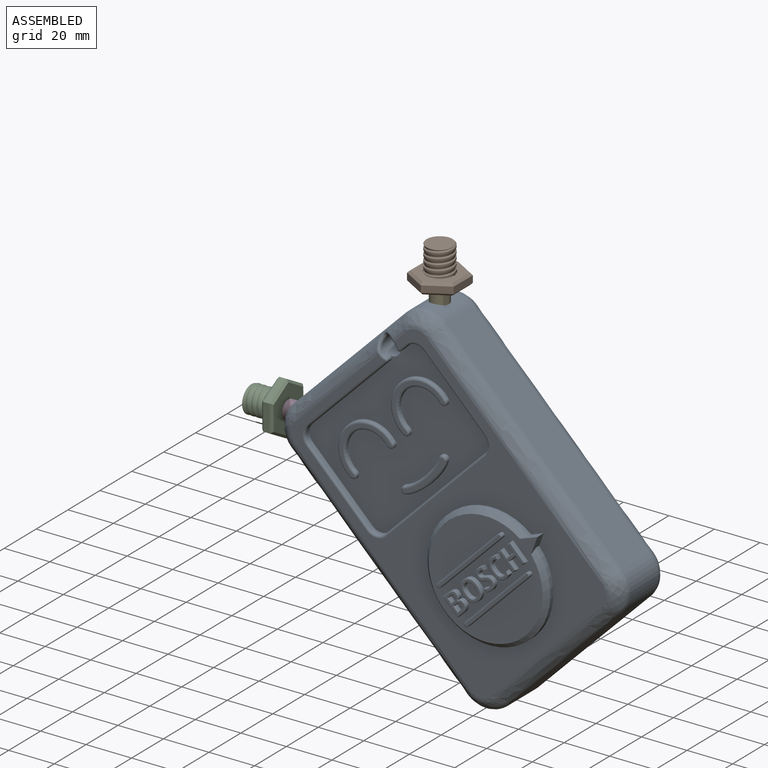
[diagram: assembled view]
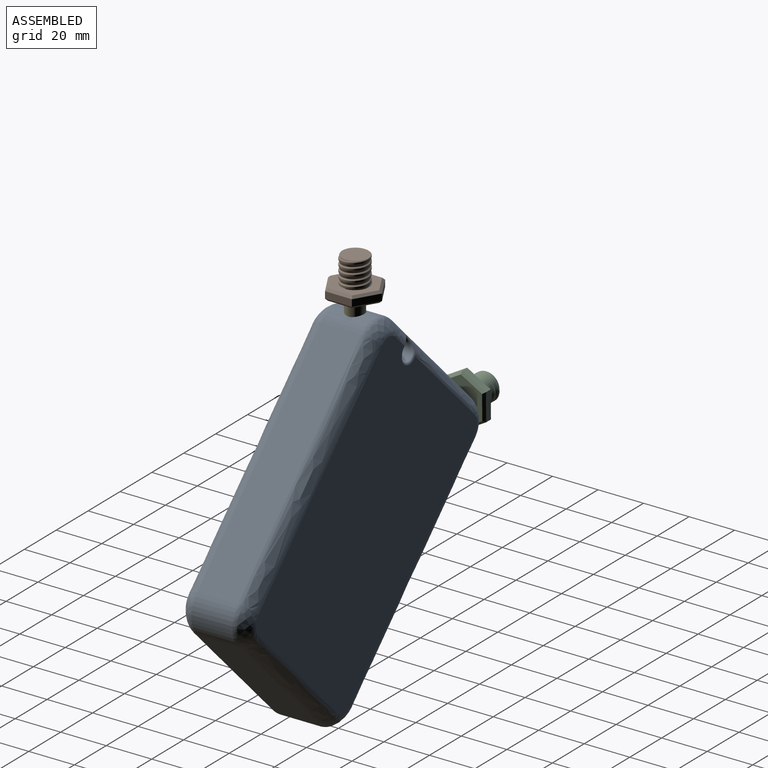
[diagram: assembled view, second angle]
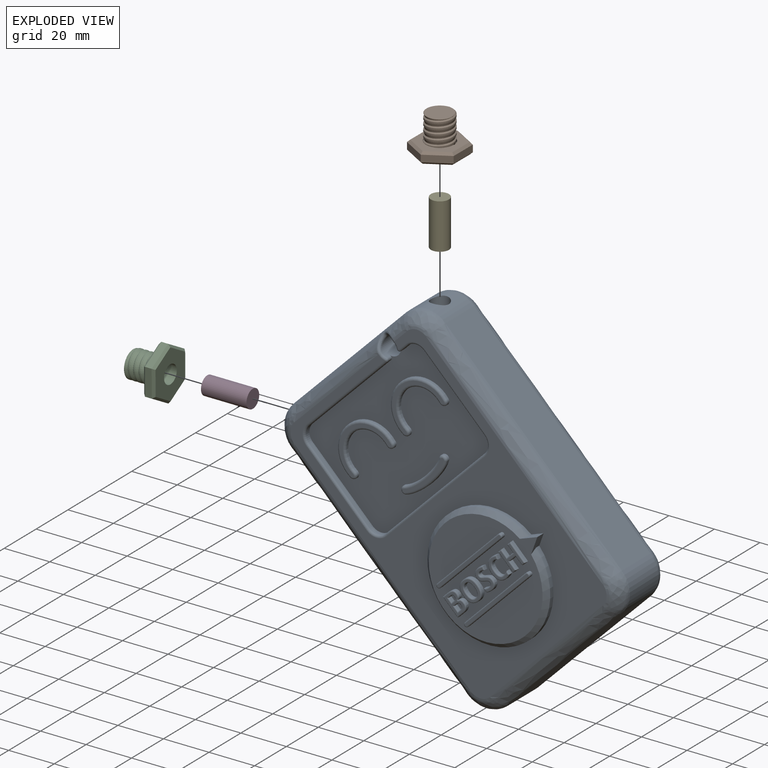
[diagram: exploded view]
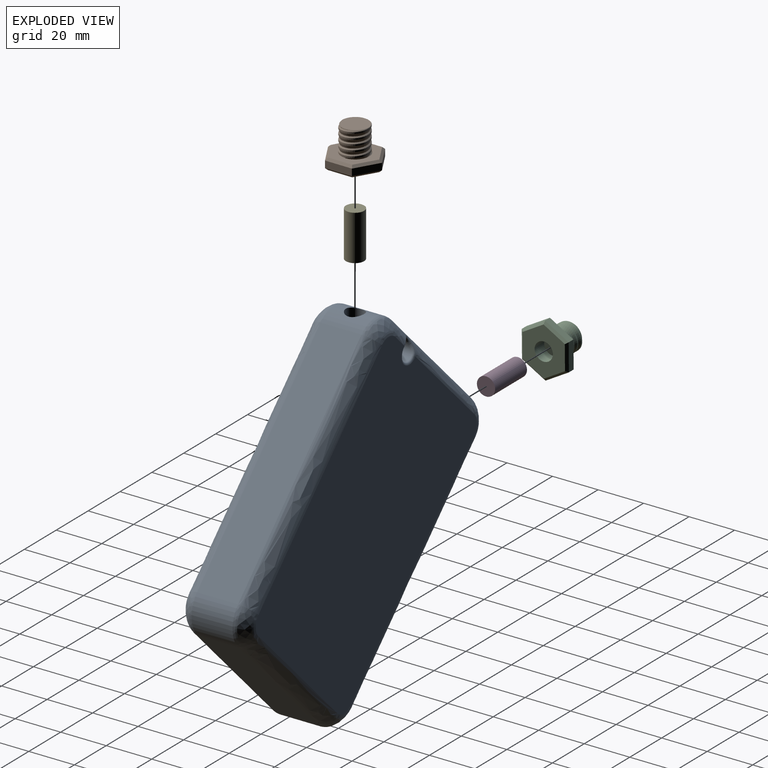
[diagram: exploded view, second angle]
ASSEMBLY  parts=5 mates=4
PART A: 305 faces, bbox 94.1x133.7x36.1 mm
  f0: plane 48.62x2mm, normal (0,-1,0), area 97.2mm2, adj f35,f37,f43,f298
  f1: cylinder r=1mm len=4.23mm, axis (1,0,0), area 6.6mm2, adj f3,f34,f41,f303
  f2: plane 57.11x50mm, normal (0,0,1), area 1597.9mm2, adj f78,f79,f80,f92,f93,f94,f95,f96
  f3: plane 121.61x82.01mm, normal (0,0,1), area 3969.4mm2, adj f1,f13,f14,f15,f16,f17,f18,f19
  f4: plane 70x18mm, normal (0,1,0), area 1260mm2, adj f5,f11,f20,f28
  f5: cylinder r=12mm len=18mm, axis (0,0,-1), area 288.2mm2, adj f4,f6,f18,f26,f73
  f6: plane 109.6x18mm, normal (-1,0,0), area 1972.8mm2, adj f5,f7,f16,f24
  f7: cylinder r=12mm len=18mm, axis (0,0,-1), area 339.3mm2, adj f6,f8,f14,f22
  f8: plane 70x18mm, normal (0,-1,0), area 1260mm2, adj f7,f9,f13,f21
  f9: cylinder r=12mm len=18mm, axis (0,0,-1), area 339.3mm2, adj f8,f10,f15,f23
  f10: plane 109.6x18mm, normal (1,0,0), area 1972.8mm2, adj f9,f11,f17,f25
  f11: cylinder r=12mm len=18mm, axis (0,0,-1), area 288.2mm2, adj f4,f10,f19,f27,f76
  f12: plane 121.61x82.01mm, normal (0,0,-1), area 9896.2mm2, adj f21,f22,f23,f24,f25,f26,f27,f28
  f13: bspline ~70x6mm, area 633.7mm2, adj f3,f8,f14,f15
  f14: bspline ~12x12mm, area 136.9mm2, adj f3,f7,f13,f16
  f15: bspline ~12x12mm, area 136.9mm2, adj f3,f9,f13,f17
  f16: bspline ~109.6x6mm, area 992.3mm2, adj f3,f6,f14,f18
  f17: bspline ~109.6x6mm, area 992.3mm2, adj f3,f10,f15,f19
  f18: bspline ~12x12mm, area 136.9mm2, adj f3,f5,f16,f20
  f19: bspline ~12x12mm, area 136.9mm2, adj f3,f11,f17,f20
  f20: bspline ~70x6mm, area 582.4mm2, adj f3,f4,f18,f19,f301
  f21: bspline ~70x6mm, area 633.7mm2, adj f8,f12,f22,f23
  f22: bspline ~12x12mm, area 136.9mm2, adj f7,f12,f21,f24
  f23: bspline ~12x12mm, area 136.9mm2, adj f9,f12,f21,f25
  f24: bspline ~109.6x6mm, area 992.3mm2, adj f6,f12,f22,f26
  f25: bspline ~109.6x6mm, area 992.3mm2, adj f10,f12,f23,f27
  f26: bspline ~12x12mm, area 136.9mm2, adj f5,f12,f24,f28
  f27: bspline ~12x12mm, area 136.9mm2, adj f11,f12,f25,f28
  f28: bspline ~70x6mm, area 582.4mm2, adj f4,f12,f26,f27,f296
  f29: cylinder r=5.25mm len=5.25mm, axis (0,0,1), area 16.5mm2, adj f30,f36,f37,f42
  f30: plane 61.23x2mm, normal (0,1,0), area 122.5mm2, adj f29,f31,f37,f40
  f31: cylinder r=5.25mm len=5.25mm, axis (0,0,1), area 16.5mm2, adj f30,f32,f37,f38
  f32: plane 37.29x2mm, normal (-1,0,0), area 74.6mm2, adj f31,f33,f37,f39
  f33: cylinder r=5.25mm len=5.25mm, axis (0,0,1), area 16.5mm2, adj f32,f34,f37,f41
  f34: plane 4.23x2mm, normal (0,-1,0), area 8.5mm2, adj f1,f33,f37,f304
  f35: cylinder r=5.25mm len=5.25mm, axis (0,0,1), area 16.5mm2, adj f0,f36,f37,f45
  f36: plane 37.29x2mm, normal (1,0,0), area 74.6mm2, adj f29,f35,f37,f44
  f37: plane 71.73x49.33mm, normal (0,0,1), area 3009.6mm2, adj f0,f29,f30,f31,f32,f33,f34,f35
  f38: torus R=6.25mm, axis (0,0,1), area 13.9mm2, adj f3,f31,f39,f40
  f39: cylinder r=1mm len=37.29mm, axis (0,-1,0), area 58.6mm2, adj f3,f32,f38,f41
  f40: cylinder r=1mm len=61.23mm, axis (-1,0,0), area 96.2mm2, adj f3,f30,f38,f42
  f41: torus R=6.25mm, axis (0,0,1), area 13.9mm2, adj f1,f3,f33,f39
  f42: torus R=6.25mm, axis (0,0,1), area 13.9mm2, adj f3,f29,f40,f44
  f43: cylinder r=1mm len=48.62mm, axis (1,0,0), area 76.4mm2, adj f0,f3,f45,f299
  f44: cylinder r=1mm len=37.29mm, axis (0,1,0), area 58.6mm2, adj f3,f36,f42,f45
  f45: torus R=6.25mm, axis (0,0,1), area 13.9mm2, adj f3,f35,f43,f44
  f46: cylinder r=13.5mm len=27mm, axis (0,0,-1), area 46.5mm2, adj f37,f47,f49,f70
  f47: cylinder r=1.75mm len=3.48mm, axis (0,0,-1), area 5.5mm2, adj f37,f46,f48,f72
  f48: cylinder r=10mm len=20mm, axis (0,0,-1), area 34.4mm2, adj f37,f47,f49,f71
  f49: cylinder r=1.75mm len=3.48mm, axis (0,0,-1), area 5.5mm2, adj f37,f46,f48,f69
  f50: plane 25x15.02mm, normal (0,0,1), area 62.5mm2, adj f69,f70,f71,f72
  f51: cylinder r=1.75mm len=3.48mm, axis (0,0,-1), area 5.5mm2, adj f37,f52,f54,f65
  f52: cylinder r=10mm len=20mm, axis (0,0,-1), area 34.4mm2, adj f37,f51,f53,f66
  f53: cylinder r=1.75mm len=3.48mm, axis (0,0,-1), area 5.5mm2, adj f37,f52,f54,f68
  f54: cylinder r=13.5mm len=27mm, axis (0,0,-1), area 46.5mm2, adj f37,f51,f53,f67
  f55: plane 25x15.02mm, normal (0,0,1), area 62.5mm2, adj f65,f66,f67,f68
  f56: extruded ~21.72x2.02mm, area 22.3mm2, adj f37,f57,f59,f62
  f57: cylinder r=1.76mm len=3.11mm, axis (0,0,-1), area 5.2mm2, adj f37,f56,f58,f64
  f58: extruded ~25.72x2.63mm, area 26.5mm2, adj f37,f57,f59,f63
  f59: cylinder r=1.76mm len=3.11mm, axis (0,0,-1), area 5.2mm2, adj f37,f56,f58,f61
  f60: plane 24.97x3.75mm, normal (0,0,1), area 37.9mm2, adj f61,f62,f63,f64
  f61: torus R=0.76mm, axis (0,0,1), area 6.4mm2, adj f59,f60,f62,f63
  f62: bspline ~23.76x3.31mm, area 35.6mm2, adj f56,f60,f61,f64
  f63: bspline ~26.18x3.64mm, area 40.9mm2, adj f58,f60,f61,f64
  f64: torus R=0.76mm, axis (0,0,1), area 6.4mm2, adj f57,f60,f62,f63
  f65: torus R=0.75mm, axis (0,0,1), area 6.8mm2, adj f51,f55,f66,f67
  f66: torus R=11mm, axis (0,0,1), area 56.1mm2, adj f52,f55,f65,f68
  f67: torus R=12.5mm, axis (0,0,1), area 71.1mm2, adj f54,f55,f65,f68
  f68: torus R=0.75mm, axis (0,0,1), area 6.8mm2, adj f53,f55,f66,f67
  f69: torus R=0.75mm, axis (0,0,1), area 6.8mm2, adj f49,f50,f70,f71
  f70: torus R=12.5mm, axis (0,0,1), area 71.1mm2, adj f46,f50,f69,f72
  f71: torus R=11mm, axis (0,0,1), area 56.1mm2, adj f48,f50,f69,f72
  f72: torus R=0.75mm, axis (0,0,1), area 6.8mm2, adj f47,f50,f70,f71
  f73: cylinder r=4mm len=11.4mm, axis (-0.71,0.71,0), area 204.2mm2, adj f5,f74
  f74: plane 8x5.66mm, normal (-0.71,0.71,0), area 50.3mm2, adj f73
  f75: plane 8x5.66mm, normal (0.71,0.71,0), area 50.3mm2, adj f76
  f76: cylinder r=4mm len=11.27mm, axis (0.71,0.71,0), area 199.5mm2, adj f11,f75
  f77: cylinder r=27mm len=54mm, axis (0,0,-1), area 329.4mm2, adj f3,f78,f79,f80
  f78: plane 7.4x4.05mm, normal (0.43,-0.9,0), area 25.4mm2, adj f2,f3,f77,f79,f80
  f79: plane 7.4x4.05mm, normal (0.43,0.9,0), area 25.4mm2, adj f2,f3,f77,f78,f80
  f80: cone r=25mm half-angle=45deg, axis (0,0,-1), area 445.1mm2, adj f2,f77,f78,f79
  f81: plane 2.41x1.5mm, normal (1,0,0), area 3.6mm2, adj f82,f105,f108,f216
  f82: plane 1.5x1.22mm, normal (0,-1,0), area 1.8mm2, adj f81,f83,f108,f217
  f83: extruded ~1.64x1.5mm, area 3.4mm2, adj f82,f84,f108,f215
  f84: extruded ~1.5x0.95mm, area 1.6mm2, adj f83,f85,f108,f213
  f85: extruded ~1.5x1.2mm, area 1.9mm2, adj f84,f105,f108,f212
  f86: plane 1.5x1.14mm, normal (0,1,0), area 1.7mm2, adj f87,f103,f107,f211
  f87: plane 2.06x1.5mm, normal (1,0,0), area 3.1mm2, adj f86,f88,f107,f209
  f88: plane 1.5x1.03mm, normal (0,-1,0), area 1.5mm2, adj f87,f89,f107,f207
  f89: extruded ~1.5x1.23mm, area 1.9mm2, adj f88,f90,f107,f205
  f90: extruded ~1.5x0.76mm, area 1.4mm2, adj f89,f91,f107,f206
  f91: extruded ~1.5x0.82mm, area 1.4mm2, adj f90,f103,f107,f208
  f92: plane 2.88x1.5mm, normal (0,1,0), area 4.3mm2, adj f2,f93,f104,f203
  f93: plane 9.25x1.5mm, normal (-1,0,0), area 13.9mm2, adj f2,f92,f94,f204
  f94: plane 3.46x1.5mm, normal (0,-1,0), area 5.2mm2, adj f2,f93,f95,f202
  f95: extruded ~2.48x1.5mm, area 3.9mm2, adj f2,f94,f96,f200
  f96: extruded ~1.97x1.5mm, area 3.4mm2, adj f2,f95,f97,f198
  f97: extruded ~1.5x1.43mm, area 2.3mm2, adj f2,f96,f98,f196
  f98: extruded ~1.5x1.27mm, area 2.2mm2, adj f2,f97,f99,f194
  f99: plane 1.5x0.06mm, normal (1,0,0), area 0.1mm2, adj f2,f98,f100,f193
  f100: extruded ~1.5x1.03mm, area 1.9mm2, adj f2,f99,f101,f195
  f101: extruded ~1.5x1.36mm, area 2.2mm2, adj f2,f100,f102,f197
  f102: extruded ~1.78x1.5mm, area 3.1mm2, adj f2,f101,f104,f199
  f103: extruded ~1.5x1.16mm, area 1.8mm2, adj f86,f91,f107,f210
  f104: extruded ~2.86x1.5mm, area 4.4mm2, adj f2,f92,f102,f201
  f105: plane 1.5x1.28mm, normal (0,1,0), area 1.9mm2, adj f81,f85,f108,f214
  f106: plane 8.25x5.86mm, normal (0,0,1), area 21.1mm2, adj f193,f194,f195,f196,f197,f198,f199,f200
  f107: plane 2.65x2.06mm, normal (0,0,1), area 5mm2, adj f86,f87,f88,f89,f90,f91,f103
  f108: plane 2.86x2.41mm, normal (0,0,1), area 6.3mm2, adj f81,f82,f83,f84,f85,f105
  f109: extruded ~2.34x1.5mm, area 3.7mm2, adj f110,f122,f124,f230
  f110: extruded ~2.34x1.5mm, area 3.7mm2, adj f109,f111,f124,f231
  f111: extruded ~1.76x1.5mm, area 3mm2, adj f110,f112,f124,f229
  f112: extruded ~3.12x2.33mm, area 6.7mm2, adj f111,f113,f124,f227
  f113: extruded ~3.12x2.35mm, area 6.7mm2, adj f112,f122,f124,f226
  f114: extruded ~3.53x1.5mm, area 5.7mm2, adj f2,f115,f121,f224
  f115: extruded ~3.53x1.5mm, area 5.7mm2, adj f2,f114,f116,f225
  f116: extruded ~3.26x1.5mm, area 5.4mm2, adj f2,f115,f117,f223
  f117: extruded ~3.27x1.5mm, area 5.4mm2, adj f2,f116,f118,f221
  f118: extruded ~3.53x1.5mm, area 5.7mm2, adj f2,f117,f119,f219
  f119: extruded ~3.54x1.5mm, area 5.7mm2, adj f2,f118,f120,f218
  f120: extruded ~3.27x1.5mm, area 5.4mm2, adj f2,f119,f121,f220
  f121: extruded ~3.27x1.5mm, area 5.4mm2, adj f2,f114,f120,f222
  f122: extruded ~1.76x1.5mm, area 3mm2, adj f109,f113,f124,f228
  f123: plane 8.52x7.81mm, normal (0,0,1), area 21.1mm2, adj f218,f219,f220,f221,f222,f223,f224,f225
  f124: plane 6.24x4.69mm, normal (0,0,1), area 24.4mm2, adj f109,f110,f111,f112,f113,f122
  f125: extruded ~1.98x1.5mm, area 3.4mm2, adj f2,f126,f152,f293
  f126: extruded ~1.53x1.5mm, area 2.4mm2, adj f2,f125,f127,f294
  f127: extruded ~1.78x1.5mm, area 3.3mm2, adj f2,f126,f128,f292
  f128: extruded ~1.5x1.24mm, area 2.1mm2, adj f2,f127,f129,f290
  f129: extruded ~1.5x0.38mm, area 0.8mm2, adj f2,f128,f130,f288
  f130: extruded ~1.5x0.45mm, area 0.7mm2, adj f2,f129,f131,f286
  f131: extruded ~1.5x0.68mm, area 1.1mm2, adj f2,f130,f132,f284
  f132: extruded ~1.5x0.85mm, area 1.4mm2, adj f2,f131,f133,f282
  f133: extruded ~1.5x0.95mm, area 1.4mm2, adj f2,f132,f134,f280
  f134: extruded ~1.5x1.23mm, area 1.9mm2, adj f2,f133,f135,f278
  f135: plane 1.53x1.5mm, normal (0.92,-0.38,0), area 2.5mm2, adj f2,f134,f136,f276
  f136: extruded ~1.5x1.37mm, area 2.2mm2, adj f2,f135,f137,f274
  f137: extruded ~1.5x1.38mm, area 2.1mm2, adj f2,f136,f138,f272
  f138: extruded ~2.3x1.5mm, area 3.7mm2, adj f2,f137,f139,f270
  f139: extruded ~1.93x1.5mm, area 3.3mm2, adj f2,f138,f140,f268
  f140: extruded ~1.5x1.14mm, area 1.8mm2, adj f2,f139,f141,f267
  f141: extruded ~1.5x0.85mm, area 1.6mm2, adj f2,f140,f142,f269
  f142: extruded ~1.5x1.27mm, area 2.2mm2, adj f2,f141,f143,f271
  f143: extruded ~1.5x1.2mm, area 2mm2, adj f2,f142,f144,f273
  f144: extruded ~1.5x0.45mm, area 0.9mm2, adj f2,f143,f145,f275
  f145: extruded ~1.5x0.48mm, area 0.8mm2, adj f2,f144,f146,f277
  f146: extruded ~1.5x0.73mm, area 1.3mm2, adj f2,f145,f147,f279
  f147: extruded ~1.5x0.99mm, area 1.6mm2, adj f2,f146,f148,f281
  f148: extruded ~1.5x1.19mm, area 1.8mm2, adj f2,f147,f149,f283
  f149: extruded ~1.58x1.5mm, area 2.5mm2, adj f2,f148,f150,f285
  f150: plane 1.82x1.5mm, normal (-1,0,0), area 2.7mm2, adj f2,f149,f151,f287
  f151: extruded ~2.62x1.5mm, area 4.1mm2, adj f2,f150,f152,f289
  f152: extruded ~2.51x1.5mm, area 4mm2, adj f2,f125,f151,f291
  f153: plane 8.51x5.03mm, normal (0,0,1), area 13.4mm2, adj f267,f268,f269,f270,f271,f272,f273,f274
  f154: extruded ~1.72x1.5mm, area 3mm2, adj f2,f155,f168,f262
  f155: extruded ~1.5x1.03mm, area 1.6mm2, adj f2,f154,f156,f260
  f156: extruded ~1.5x1.04mm, area 1.7mm2, adj f2,f155,f157,f258
  f157: plane 1.6x1.5mm, normal (0.93,-0.37,0), area 2.6mm2, adj f2,f156,f158,f256
  f158: extruded ~2.71x1.5mm, area 4.2mm2, adj f2,f157,f159,f254
  f159: extruded ~2.31x1.5mm, area 3.6mm2, adj f2,f158,f160,f252
  f160: extruded ~1.66x1.51mm, area 3.4mm2, adj f2,f159,f161,f253
  f161: extruded ~2.53x1.5mm, area 3.9mm2, adj f2,f160,f162,f255
  f162: extruded ~3.52x1.5mm, area 5.6mm2, adj f2,f161,f163,f257
  f163: extruded ~3.09x1.5mm, area 5.1mm2, adj f2,f162,f164,f259
  f164: extruded ~2.54x1.5mm, area 3.9mm2, adj f2,f163,f165,f261
  f165: plane 1.64x1.5mm, normal (1,0,0), area 2.5mm2, adj f2,f164,f166,f263
  f166: extruded ~2.36x1.5mm, area 3.6mm2, adj f2,f165,f167,f265
  f167: extruded ~3.09x2.32mm, area 6.6mm2, adj f2,f166,f168,f266
  f168: extruded ~2.32x1.5mm, area 3.7mm2, adj f2,f154,f167,f264
  f169: plane 8.51x5.91mm, normal (0,0,1), area 12.7mm2, adj f252,f253,f254,f255,f256,f257,f258,f259
  f170: plane 1.96x1.5mm, normal (0,-1,0), area 2.9mm2, adj f2,f171,f181,f250
  f171: plane 9.25x1.5mm, normal (1,0,0), area 13.9mm2, adj f2,f170,f172,f251
  f172: plane 1.96x1.5mm, normal (0,1,0), area 2.9mm2, adj f2,f171,f173,f249
  f173: plane 3.63x1.5mm, normal (-1,0,0), area 5.4mm2, adj f2,f172,f174,f247
  f174: plane 3.66x1.5mm, normal (0,1,0), area 5.5mm2, adj f2,f173,f175,f245
  f175: plane 3.63x1.5mm, normal (1,0,0), area 5.4mm2, adj f2,f174,f176,f243
  f176: plane 1.96x1.5mm, normal (0,1,0), area 2.9mm2, adj f2,f175,f177,f241
  f177: plane 9.25x1.5mm, normal (-1,0,0), area 13.9mm2, adj f2,f176,f178,f240
  f178: plane 1.96x1.5mm, normal (0,-1,0), area 2.9mm2, adj f2,f177,f179,f242
  f179: plane 3.99x1.5mm, normal (1,0,0), area 6mm2, adj f2,f178,f180,f244
  f180: plane 3.66x1.5mm, normal (0,-1,0), area 5.5mm2, adj f2,f179,f181,f246
  f181: plane 3.99x1.5mm, normal (-1,0,0), area 6mm2, adj f2,f170,f180,f248
  f182: plane 8.25x6.58mm, normal (0,0,1), area 18.8mm2, adj f240,f241,f242,f243,f244,f245,f246,f247
  f183: cylinder r=1mm len=2mm, axis (0,0,-1), area 4.7mm2, adj f2,f184,f186,f237
  f184: plane 38x1.5mm, normal (0,-1,0), area 57mm2, adj f2,f183,f185,f239
  f185: cylinder r=1mm len=2mm, axis (0,0,-1), area 4.7mm2, adj f2,f184,f186,f238
  f186: plane 38x1.5mm, normal (0,1,0), area 57mm2, adj f2,f183,f185,f236
  f187: plane 39x1mm, normal (0,0,1), area 38.8mm2, adj f236,f237,f238,f239
  f188: plane 38x1.5mm, normal (0,-1,0), area 57mm2, adj f2,f189,f191,f233
  f189: cylinder r=1mm len=2mm, axis (0,0,-1), area 4.7mm2, adj f2,f188,f190,f235
  f190: plane 38x1.5mm, normal (0,1,0), area 57mm2, adj f2,f189,f191,f234
  f191: cylinder r=1mm len=2mm, axis (0,0,-1), area 4.7mm2, adj f2,f188,f190,f232
  f192: plane 39x1mm, normal (0,0,1), area 38.8mm2, adj f232,f233,f234,f235
  f193: cylinder r=0.5mm len=0.89mm, axis (0,-1,0), area 0.3mm2, adj f99,f106,f194,f195
  f194: bspline ~2.34x1.45mm, area 1.2mm2, adj f98,f106,f193,f196
  f195: bspline ~2.35x1.34mm, area 1mm2, adj f100,f106,f193,f197
  f196: bspline ~1.81x0.84mm, area 1.1mm2, adj f97,f106,f194,f198
  f197: bspline ~1.87x0.96mm, area 1mm2, adj f101,f106,f195,f199
  f198: bspline ~2.9x1.68mm, area 1.6mm2, adj f96,f106,f196,f200
  f199: bspline ~2.45x1.53mm, area 1.5mm2, adj f102,f106,f197,f201
  f200: bspline ~3.49x1.45mm, area 2mm2, adj f95,f106,f198,f202
  f201: bspline ~3.87x1.17mm, area 2.2mm2, adj f104,f106,f199,f203
  f202: cylinder r=0.5mm len=3.46mm, axis (-1,0,0), area 2.5mm2, adj f94,f106,f200,f204
  f203: cylinder r=0.5mm len=2.88mm, axis (1,0,0), area 2.1mm2, adj f92,f106,f201,f204
  f204: cylinder r=0.5mm len=9.25mm, axis (0,1,0), area 6.9mm2, adj f93,f106,f202,f203
  f205: bspline ~1.72x0.82mm, area 1.1mm2, adj f89,f106,f206,f207
  f206: bspline ~1.54x1.09mm, area 0.9mm2, adj f90,f106,f205,f208
  f207: cylinder r=0.5mm len=1.53mm, axis (-1,0,0), area 1mm2, adj f88,f106,f205,f209
  f208: bspline ~1.57x1.04mm, area 0.9mm2, adj f91,f106,f206,f210
  f209: cylinder r=0.5mm len=3.06mm, axis (0,-1,0), area 2mm2, adj f87,f106,f207,f211
  f210: bspline ~2.02x0.78mm, area 1mm2, adj f103,f106,f208,f211
  f211: cylinder r=0.5mm len=1.64mm, axis (1,0,0), area 1.1mm2, adj f86,f106,f209,f210
  f212: bspline ~2.15x0.95mm, area 1.1mm2, adj f85,f106,f213,f214
  f213: bspline ~1.74x1.08mm, area 1mm2, adj f84,f106,f212,f215
  f214: cylinder r=0.5mm len=1.78mm, axis (1,0,0), area 1.2mm2, adj f105,f106,f212,f216
  f215: bspline ~3.19x2.36mm, area 2mm2, adj f83,f106,f213,f217
  f216: cylinder r=0.5mm len=3.41mm, axis (0,-1,0), area 2.3mm2, adj f81,f106,f214,f217
  f217: cylinder r=0.5mm len=1.72mm, axis (-1,0,0), area 1.2mm2, adj f82,f106,f215,f216
  f218: bspline ~5.55x2mm, area 2.9mm2, adj f119,f123,f219,f220
  f219: bspline ~5.5x2mm, area 2.9mm2, adj f118,f123,f218,f221
  f220: bspline ~4.85x2.01mm, area 2.7mm2, adj f120,f123,f218,f222
  f221: bspline ~4x2mm, area 2.7mm2, adj f117,f123,f219,f223
  f222: bspline ~4.85x2.01mm, area 2.7mm2, adj f121,f123,f220,f224
  f223: bspline ~4.84x2mm, area 2.7mm2, adj f116,f123,f221,f225
  f224: bspline ~5.53x2mm, area 2.9mm2, adj f114,f123,f222,f225
  f225: bspline ~5.53x1.99mm, area 2.9mm2, adj f115,f123,f223,f224
  f226: bspline ~4.13x3.87mm, area 3.7mm2, adj f113,f123,f227,f228
  f227: bspline ~5.67x3.86mm, area 3.7mm2, adj f112,f123,f226,f229
  f228: bspline ~2.93x1.67mm, area 1.7mm2, adj f122,f123,f226,f230
  f229: bspline ~2.94x1.68mm, area 1.7mm2, adj f111,f123,f227,f231
  f230: bspline ~3.63x1.42mm, area 2mm2, adj f109,f123,f228,f231
  f231: bspline ~3.63x1.43mm, area 2mm2, adj f110,f123,f229,f230
  f232: torus R=0.5mm, axis (0,0,1), area 2mm2, adj f191,f192,f233,f234
  f233: cylinder r=0.5mm len=38mm, axis (-1,0,0), area 29.8mm2, adj f188,f192,f232,f235
  f234: cylinder r=0.5mm len=38mm, axis (1,0,0), area 29.8mm2, adj f190,f192,f232,f235
  f235: torus R=0.5mm, axis (0,0,1), area 2mm2, adj f189,f192,f233,f234
  f236: cylinder r=0.5mm len=38mm, axis (1,0,0), area 29.8mm2, adj f186,f187,f237,f238
  f237: torus R=0.5mm, axis (0,0,1), area 2mm2, adj f183,f187,f236,f239
  f238: torus R=0.5mm, axis (0,0,1), area 2mm2, adj f185,f187,f236,f239
  f239: cylinder r=0.5mm len=38mm, axis (-1,0,0), area 29.8mm2, adj f184,f187,f237,f238
  f240: cylinder r=0.5mm len=9.25mm, axis (0,1,0), area 6.9mm2, adj f177,f182,f241,f242
  f241: cylinder r=0.5mm len=1.96mm, axis (1,0,0), area 1.1mm2, adj f176,f182,f240,f243
  f242: cylinder r=0.5mm len=1.96mm, axis (-1,0,0), area 1.1mm2, adj f178,f182,f240,f244
  f243: cylinder r=0.5mm len=4.13mm, axis (0,-1,0), area 2.8mm2, adj f175,f182,f241,f245
  f244: cylinder r=0.5mm len=4.49mm, axis (0,-1,0), area 3.1mm2, adj f179,f182,f242,f246
  f245: cylinder r=0.5mm len=4.66mm, axis (1,0,0), area 3.3mm2, adj f174,f182,f243,f247
  f246: cylinder r=0.5mm len=4.66mm, axis (-1,0,0), area 3.3mm2, adj f180,f182,f244,f248
  f247: cylinder r=0.5mm len=4.13mm, axis (0,1,0), area 2.8mm2, adj f173,f182,f245,f249
  f248: cylinder r=0.5mm len=4.49mm, axis (0,1,0), area 3.1mm2, adj f181,f182,f246,f250
  f249: cylinder r=0.5mm len=1.96mm, axis (1,0,0), area 1.1mm2, adj f172,f182,f247,f251
  f250: cylinder r=0.5mm len=1.96mm, axis (-1,0,0), area 1.1mm2, adj f170,f182,f248,f251
  f251: cylinder r=0.5mm len=9.25mm, axis (0,-1,0), area 6.9mm2, adj f171,f182,f249,f250
  f252: bspline ~3.22x1.26mm, area 1.8mm2, adj f159,f169,f253,f254
  f253: bspline ~2.52x2.35mm, area 1.7mm2, adj f160,f169,f252,f255
  f254: bspline ~3.38x1.16mm, area 2mm2, adj f158,f169,f252,f256
  f255: bspline ~3.52x1.2mm, area 2mm2, adj f161,f169,f253,f257
  f256: cylinder r=0.5mm len=1.78mm, axis (-0.37,-0.93,0), area 1mm2, adj f157,f169,f254,f258
  f257: bspline ~5.61x1.95mm, area 2.8mm2, adj f162,f169,f255,f259
  f258: bspline ~1.7x1.08mm, area 0.7mm2, adj f156,f169,f256,f260
  f259: bspline ~4.07x2.36mm, area 2.6mm2, adj f163,f169,f257,f261
  f260: bspline ~1.61x0.75mm, area 0.9mm2, adj f155,f169,f258,f262
  f261: bspline ~3.16x0.98mm, area 1.9mm2, adj f164,f169,f259,f263
  f262: bspline ~2.85x1.7mm, area 1.7mm2, adj f154,f169,f260,f264
  f263: cylinder r=0.5mm len=1.64mm, axis (0,-1,0), area 0.9mm2, adj f165,f169,f261,f265
  f264: bspline ~3.61x1.43mm, area 2mm2, adj f168,f169,f262,f266
  f265: bspline ~3.32x1.08mm, area 1.7mm2, adj f166,f169,f263,f266
  f266: bspline ~5.61x3.83mm, area 3.7mm2, adj f167,f169,f264,f265
  f267: bspline ~1.63x0.82mm, area 0.9mm2, adj f140,f153,f268,f269
  f268: bspline ~2.9x1.61mm, area 1.6mm2, adj f139,f153,f267,f270
  f269: bspline ~1.42x1.27mm, area 0.8mm2, adj f141,f153,f267,f271
  f270: bspline ~3.63x1.39mm, area 1.8mm2, adj f138,f153,f268,f272
  f271: bspline ~2.05x1.51mm, area 1.1mm2, adj f142,f153,f269,f273
  f272: bspline ~1.89x0.72mm, area 1.1mm2, adj f137,f153,f270,f274
  f273: bspline ~1.93x1.32mm, area 1.1mm2, adj f143,f153,f271,f275
  f274: bspline ~1.88x1.06mm, area 0.9mm2, adj f136,f153,f272,f276
  f275: bspline ~0.97x0.97mm, area 0.5mm2, adj f144,f153,f273,f277
  f276: cylinder r=0.5mm len=1.72mm, axis (-0.38,-0.92,0), area 0.9mm2, adj f135,f153,f274,f278
  f277: bspline ~0.95x0.67mm, area 0.5mm2, adj f145,f153,f275,f279
  f278: bspline ~1.85x1.04mm, area 0.8mm2, adj f134,f153,f276,f280
  f279: bspline ~1.51x1.04mm, area 0.8mm2, adj f146,f153,f277,f281
  f280: bspline ~1.3x0.67mm, area 0.8mm2, adj f133,f153,f278,f282
  f281: bspline ~1.83x0.86mm, area 0.9mm2, adj f147,f153,f279,f283
  f282: bspline ~1.45x0.79mm, area 0.8mm2, adj f132,f153,f280,f284
  f283: bspline ~1.62x0.73mm, area 1mm2, adj f148,f153,f281,f285
  f284: bspline ~1.43x0.97mm, area 0.7mm2, adj f131,f153,f282,f286
  f285: bspline ~2.31x1.24mm, area 1.1mm2, adj f149,f153,f283,f287
  f286: bspline ~0.89x0.64mm, area 0.5mm2, adj f130,f153,f284,f288
  f287: cylinder r=0.5mm len=1.82mm, axis (0,1,0), area 1mm2, adj f150,f153,f285,f289
  f288: bspline ~0.93x0.91mm, area 0.5mm2, adj f129,f153,f286,f290
  f289: bspline ~3.31x1.08mm, area 1.9mm2, adj f151,f153,f287,f291
  f290: bspline ~2.02x1.37mm, area 1.1mm2, adj f128,f153,f288,f292
  f291: bspline ~3.5x1.46mm, area 2mm2, adj f152,f153,f289,f293
  f292: bspline ~2.52x1.83mm, area 1.7mm2, adj f127,f153,f290,f294
  f293: bspline ~2.5x1.67mm, area 1.6mm2, adj f125,f153,f291,f294
  f294: bspline ~2.08x1.07mm, area 1.2mm2, adj f126,f153,f292,f293
  f295: cylinder r=4mm len=28mm, axis (0,0,1), area 644.6mm2, adj f37,f296,f297,f298,f300,f301,f302,f304
  f296: bspline ~10x5.98mm, area 32.4mm2, adj f28,f295,f297
  f297: torus R=5mm, axis (0,0,1), area 22.8mm2, adj f12,f295,f296
  f298: cylinder r=1mm len=2mm, axis (0,0,1), area 4.3mm2, adj f0,f37,f295,f299
  f299: sphere r=1mm, area 2.6mm2, adj f43,f298,f300
  f300: torus R=5mm, axis (0,0,1), area 4.6mm2, adj f3,f295,f299,f301
  f301: bspline ~9.99x5.98mm, area 32.4mm2, adj f20,f295,f300,f302
  f302: torus R=5mm, axis (0,0,1), area 4.6mm2, adj f3,f295,f301,f303
  f303: sphere r=1mm, area 2.6mm2, adj f1,f302,f304
  f304: cylinder r=1mm len=2mm, axis (0,0,1), area 4.3mm2, adj f34,f37,f295,f303
PART B: 30 faces, bbox 20.9x24x18.2 mm
  f0: plane 11.9x3mm, normal (1,-0.01,0), area 35.7mm2, adj f1,f5,f21,f22
  f1: plane 10.26x6.03mm, normal (0.51,0.86,0), area 35.7mm2, adj f0,f2,f20,f23
  f2: plane 10.35x5.87mm, normal (-0.49,0.87,0), area 35.7mm2, adj f1,f3,f18,f25
  f3: plane 11.9x3mm, normal (-1,0.01,0), area 35.7mm2, adj f2,f4,f16,f27
  f4: plane 10.26x6.03mm, normal (-0.51,-0.86,0), area 35.7mm2, adj f3,f5,f17,f26
  f5: plane 10.35x5.87mm, normal (0.49,-0.87,0), area 35.7mm2, adj f0,f4,f19,f24
  f6: plane 21.51x18.71mm, normal (0,0,1), area 180.8mm2, adj f8,f10,f11,f12,f22,f23,f24,f25
  f7: plane 21.48x18.69mm, normal (0,0,-1), area 249.5mm2, adj f16,f17,f18,f19,f20,f21,f28
  f8: cylinder r=6.03mm len=12.05mm, axis (0,0,-1), area 129.7mm2, adj f6,f9,f10,f12,f14,f15
  f9: bspline ~14.37x14.05mm, area 220.7mm2, adj f8,f10,f12,f14
  f10: plane 1.85x0.68mm, normal (0,1,0), area 0.7mm2, adj f6,f8,f9,f11,f12
  f11: cylinder r=6.22mm len=12.44mm, axis (0,0,-1), area 22.5mm2, adj f6,f10,f12
  f12: bspline ~14.37x13.63mm, area 136.6mm2, adj f6,f8,f9,f10,f11,f13,f14,f15
  f13: plane 11.8x11.55mm, normal (0,0,1), area 102.8mm2, adj f12,f14,f15
  f14: bspline ~11.7x8.53mm, area 4.1mm2, adj f8,f9,f12,f13,f15
  f15: cone r=6.03mm half-angle=45deg, axis (0,0,-1), area 2mm2, adj f8,f12,f13,f14
  f16: plane 11.9x1.09mm, normal (-0.71,0.01,-0.71), area 16mm2, adj f3,f7,f17,f18
  f17: plane 10.27x6.6mm, normal (-0.36,-0.61,-0.71), area 16mm2, adj f4,f7,f16,f19
  f18: plane 10.35x6.45mm, normal (-0.35,0.62,-0.71), area 16mm2, adj f2,f7,f16,f20
  f19: plane 10.35x6.45mm, normal (0.35,-0.62,-0.71), area 16mm2, adj f5,f7,f17,f21
  f20: plane 10.27x6.6mm, normal (0.36,0.61,-0.71), area 16mm2, adj f1,f7,f18,f21
  f21: plane 11.9x1.09mm, normal (0.71,-0.01,-0.71), area 16mm2, adj f0,f7,f19,f20
  f22: plane 11.9x1.09mm, normal (0.71,-0.01,0.71), area 16mm2, adj f0,f6,f23,f24
  f23: plane 10.27x6.6mm, normal (0.36,0.61,0.71), area 16mm2, adj f1,f6,f22,f25
  f24: plane 10.35x6.45mm, normal (0.35,-0.62,0.71), area 16mm2, adj f5,f6,f22,f26
  f25: plane 10.35x6.45mm, normal (-0.35,0.62,0.71), area 16mm2, adj f2,f6,f23,f27
  f26: plane 10.27x6.6mm, normal (-0.36,-0.61,0.71), area 16mm2, adj f4,f6,f24,f27
  f27: plane 11.9x1.09mm, normal (-0.71,0.01,0.71), area 16mm2, adj f3,f6,f25,f26
  f28: cylinder r=4mm len=8mm, axis (0,0,-1), area 150.8mm2, adj f7,f29
  f29: plane 8x8mm, normal (0,0,-1), area 50.3mm2, adj f28
PART C: same geometry as B
PART D: 3 faces, bbox 8x8x20 mm
  f0: cylinder r=4mm len=20mm, axis (0,0,-1), area 502.7mm2, adj f1,f2
  f1: plane 8x8mm, normal (0,0,1), area 50.3mm2, adj f0
  f2: plane 8x8mm, normal (0,0,-1), area 50.3mm2, adj f0
PART E: same geometry as D
PLACE A rot(axis=(0.86,-0.36,0.36),98.4deg) t=(-68.33,-68.51,-123.87)mm
PLACE B t=(-82.6,-68.51,-42.09)mm
PLACE C rot(axis=(-0.58,-0.58,0.58),120deg) t=(-149.11,-68.51,-109.6)mm
PLACE D rot(axis=(-0.58,-0.58,0.58),120deg) t=(-135.11,-68.51,-109.6)mm
PLACE E rot(axis=(1,0,0),180deg) t=(-82.6,-68.51,-37.09)mm
MATE fastened A.f76 <-> E.f0  axis (0,0,1) through (-82.6,-68.51,-57.09)mm
MATE fastened D.f0 <-> A.f73  axis (1,0,0) through (-135.11,-68.51,-109.6)mm
MATE fastened C.f28 <-> D.f0  axis (1,0,0) through (-155.11,-68.51,-109.6)mm
MATE fastened E.f0 <-> B.f28  axis (0,0,1) through (-82.6,-68.51,-37.09)mm
